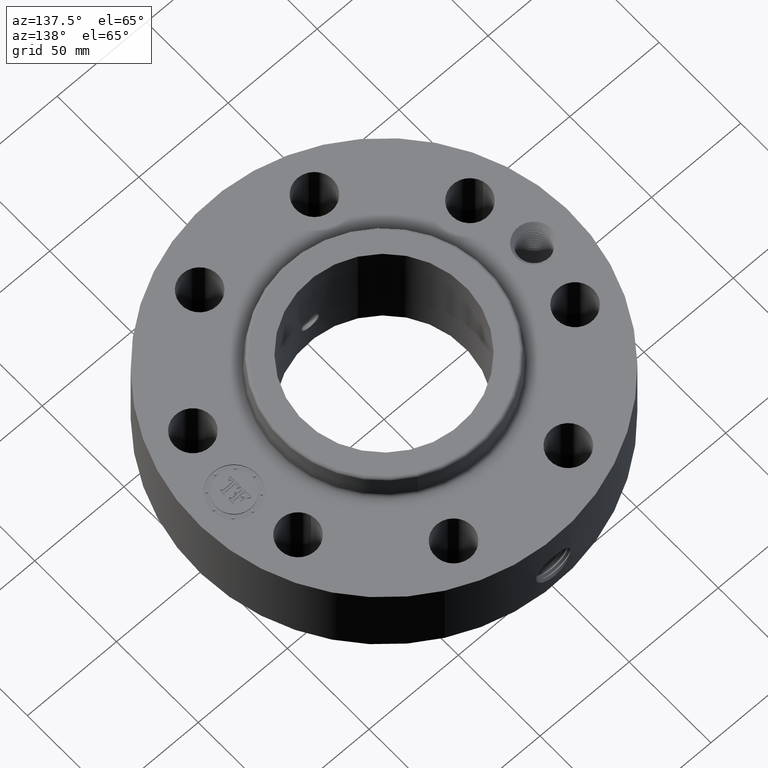
[diagram: clean part render]
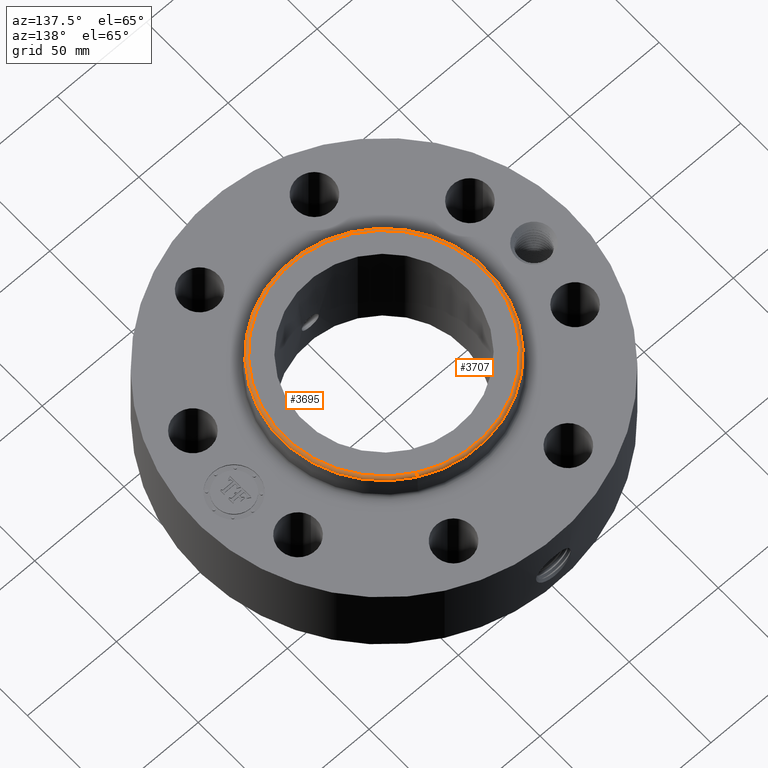
[diagram: same view with one multi-face feature highlighted, each face labeled with its STEP entity id]
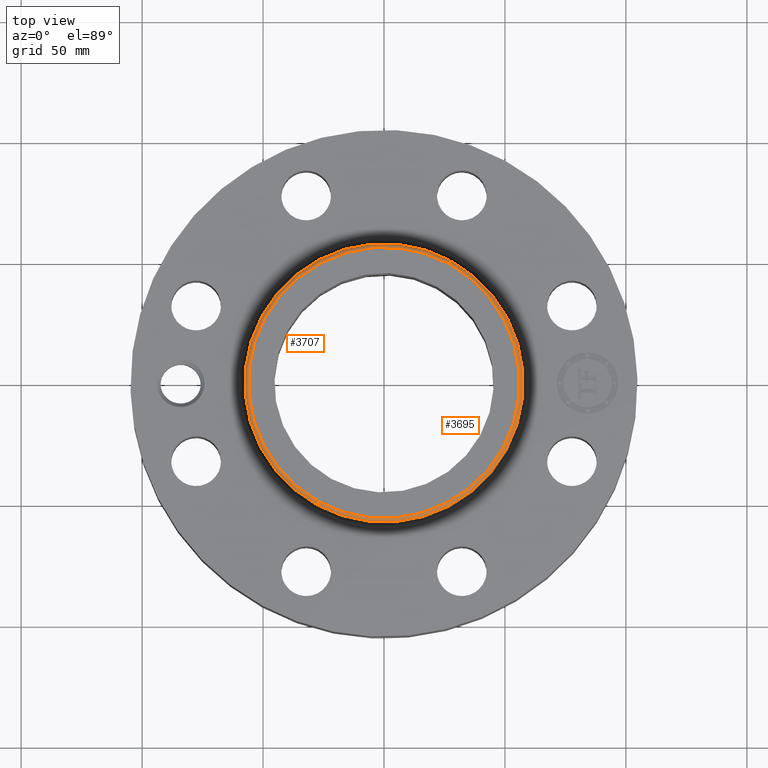
[diagram: same view with one multi-face feature highlighted, each face labeled with its STEP entity id]
A machine part, auxiliary view. The highlighted faces form ONE feature: a constant-radius fillet chain: 2 tangent blend faces with common blend radius 1.524 mm. The faces share edges in the B-rep.
A second angle (top view) of the same feature is appended — it is thin or edge-on in the first view.
Their STEP definitions:
[1] entity #3695 (Torus):
#2836=AXIS2_PLACEMENT_3D('Circle Axis2P3D',#2834,#2835,$) ;
#3668=AXIS2_PLACEMENT_3D('Torus Axis2P3D',#3665,#3666,#3667) ;
#3672=AXIS2_PLACEMENT_3D('Circle Axis2P3D',#3670,#3671,$) ;
#3679=AXIS2_PLACEMENT_3D('Circle Axis2P3D',#3677,#3678,$) ;
#3686=AXIS2_PLACEMENT_3D('Circle Axis2P3D',#3684,#3685,$) ;
#2831=CARTESIAN_POINT('Vertex',(1.08628150317,1.98842495387,2.31822934457)) ;
#2834=CARTESIAN_POINT('Axis2P3D Location',(0.,7.99652833788E-018,2.31822934457)) ;
#2838=CARTESIAN_POINT('Vertex',(-1.08628150317,-1.98842495387,2.31822934457)) ;
#3665=CARTESIAN_POINT('Axis2P3D Location',(0.,0.,2.31300000001)) ;
#3670=CARTESIAN_POINT('Axis2P3D Location',(1.05762543239,1.93597036816,2.31300000001)) ;
#3674=CARTESIAN_POINT('Vertex',(1.05762543239,1.93597036816,2.37300000001)) ;
#3677=CARTESIAN_POINT('Axis2P3D Location',(0.,0.,2.37300000001)) ;
#3681=CARTESIAN_POINT('Vertex',(-1.05762543239,-1.93597036816,2.37300000001)) ;
#3684=CARTESIAN_POINT('Axis2P3D Location',(-1.05762543239,-1.93597036816,2.31300000001)) ;
#2835=DIRECTION('Axis2P3D Direction',(0.,0.,-0.0393700787402)) ;
#3666=DIRECTION('Axis2P3D Direction',(0.,0.,-0.0393700787402)) ;
#3667=DIRECTION('Axis2P3D XDirection',(-0.0188750212049,-0.0345504945626,0.)) ;
#3671=DIRECTION('Axis2P3D Direction',(-0.0345504945626,0.0188750212049,0.)) ;
#3678=DIRECTION('Axis2P3D Direction',(0.,0.,-0.0393700787402)) ;
#3685=DIRECTION('Axis2P3D Direction',(0.0345504945626,-0.0188750212049,0.)) ;
#3690=ORIENTED_EDGE('',*,*,#2840,.F.) ;
#3691=ORIENTED_EDGE('',*,*,#3676,.T.) ;
#3692=ORIENTED_EDGE('',*,*,#3683,.T.) ;
#3693=ORIENTED_EDGE('',*,*,#3688,.F.) ;
#3695=ADVANCED_FACE('PartBody',(#3694),#3669,.T.) ;
#2837=CIRCLE('generated circle',#2836,2.26579815988) ;
#3673=CIRCLE('generated circle',#3672,0.0600000000002) ;
#3680=CIRCLE('generated circle',#3679,2.20602647799) ;
#3687=CIRCLE('generated circle',#3686,0.0600000000002) ;
#3669=TOROIDAL_SURFACE('homeo Torus',#3668,2.20602647799,0.0600000000002) ;
#2840=EDGE_CURVE('',#2832,#2839,#2837,.T.) ;
#3676=EDGE_CURVE('',#2832,#3675,#3673,.F.) ;
#3683=EDGE_CURVE('',#3675,#3682,#3680,.T.) ;
#3688=EDGE_CURVE('',#2839,#3682,#3687,.F.) ;
#3689=EDGE_LOOP('',(#3690,#3691,#3692,#3693)) ;
#3694=FACE_OUTER_BOUND('',#3689,.T.) ;
#2832=VERTEX_POINT('',#2831) ;
#2839=VERTEX_POINT('',#2838) ;
#3675=VERTEX_POINT('',#3674) ;
#3682=VERTEX_POINT('',#3681) ;
[2] entity #3707 (Torus):
#2855=AXIS2_PLACEMENT_3D('Circle Axis2P3D',#2853,#2854,$) ;
#3668=AXIS2_PLACEMENT_3D('Torus Axis2P3D',#3665,#3666,#3667) ;
#3672=AXIS2_PLACEMENT_3D('Circle Axis2P3D',#3670,#3671,$) ;
#3686=AXIS2_PLACEMENT_3D('Circle Axis2P3D',#3684,#3685,$) ;
#3698=AXIS2_PLACEMENT_3D('Circle Axis2P3D',#3696,#3697,$) ;
#2831=CARTESIAN_POINT('Vertex',(1.08628150317,1.98842495387,2.31822934457)) ;
#2838=CARTESIAN_POINT('Vertex',(-1.08628150317,-1.98842495387,2.31822934457)) ;
#2853=CARTESIAN_POINT('Axis2P3D Location',(0.,7.99652833788E-018,2.31822934457)) ;
#3665=CARTESIAN_POINT('Axis2P3D Location',(0.,0.,2.31300000001)) ;
#3670=CARTESIAN_POINT('Axis2P3D Location',(1.05762543239,1.93597036816,2.31300000001)) ;
#3674=CARTESIAN_POINT('Vertex',(1.05762543239,1.93597036816,2.37300000001)) ;
#3681=CARTESIAN_POINT('Vertex',(-1.05762543239,-1.93597036816,2.37300000001)) ;
#3684=CARTESIAN_POINT('Axis2P3D Location',(-1.05762543239,-1.93597036816,2.31300000001)) ;
#3696=CARTESIAN_POINT('Axis2P3D Location',(0.,0.,2.37300000001)) ;
#2854=DIRECTION('Axis2P3D Direction',(0.,0.,-0.0393700787402)) ;
#3666=DIRECTION('Axis2P3D Direction',(0.,0.,-0.0393700787402)) ;
#3667=DIRECTION('Axis2P3D XDirection',(-0.0188750212049,-0.0345504945626,0.)) ;
#3671=DIRECTION('Axis2P3D Direction',(-0.0345504945626,0.0188750212049,0.)) ;
#3685=DIRECTION('Axis2P3D Direction',(0.0345504945626,-0.0188750212049,0.)) ;
#3697=DIRECTION('Axis2P3D Direction',(0.,0.,-0.0393700787402)) ;
#3702=ORIENTED_EDGE('',*,*,#2857,.F.) ;
#3703=ORIENTED_EDGE('',*,*,#3688,.T.) ;
#3704=ORIENTED_EDGE('',*,*,#3700,.T.) ;
#3705=ORIENTED_EDGE('',*,*,#3676,.F.) ;
#3707=ADVANCED_FACE('PartBody',(#3706),#3669,.T.) ;
#2856=CIRCLE('generated circle',#2855,2.26579815988) ;
#3673=CIRCLE('generated circle',#3672,0.0600000000002) ;
#3687=CIRCLE('generated circle',#3686,0.0600000000002) ;
#3699=CIRCLE('generated circle',#3698,2.20602647799) ;
#3669=TOROIDAL_SURFACE('homeo Torus',#3668,2.20602647799,0.0600000000002) ;
#2857=EDGE_CURVE('',#2839,#2832,#2856,.T.) ;
#3676=EDGE_CURVE('',#2832,#3675,#3673,.F.) ;
#3688=EDGE_CURVE('',#2839,#3682,#3687,.F.) ;
#3700=EDGE_CURVE('',#3682,#3675,#3699,.T.) ;
#3701=EDGE_LOOP('',(#3702,#3703,#3704,#3705)) ;
#3706=FACE_OUTER_BOUND('',#3701,.T.) ;
#2832=VERTEX_POINT('',#2831) ;
#2839=VERTEX_POINT('',#2838) ;
#3675=VERTEX_POINT('',#3674) ;
#3682=VERTEX_POINT('',#3681) ;